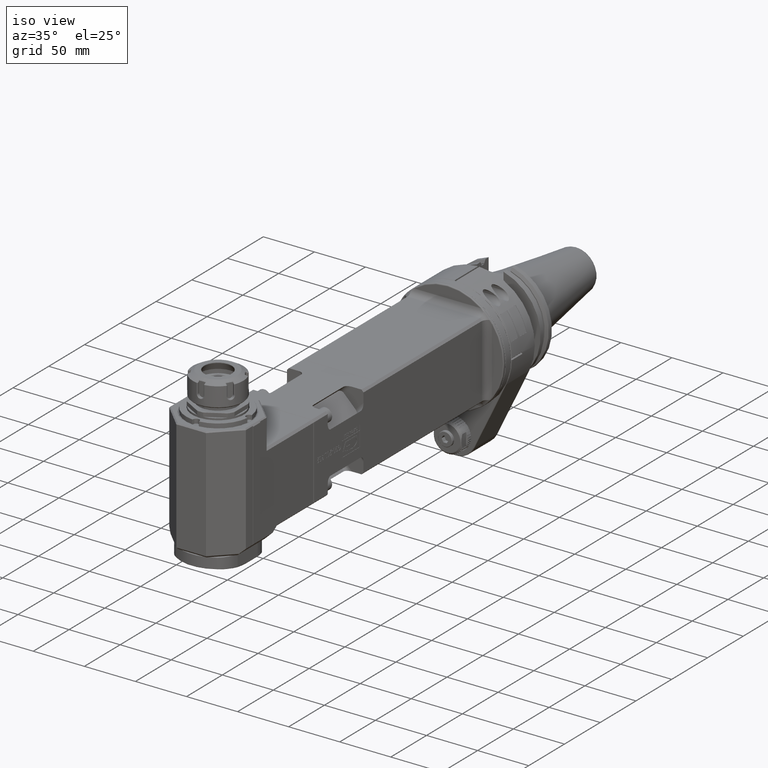
[diagram: clean part render]
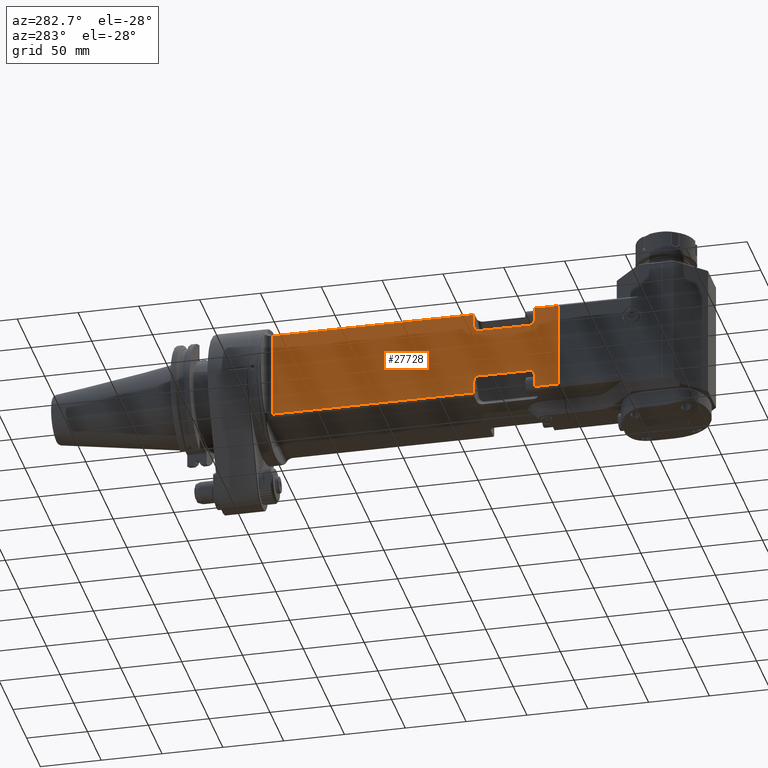
[diagram: tour spotlight — one face highlighted and labeled with its STEP entity id]
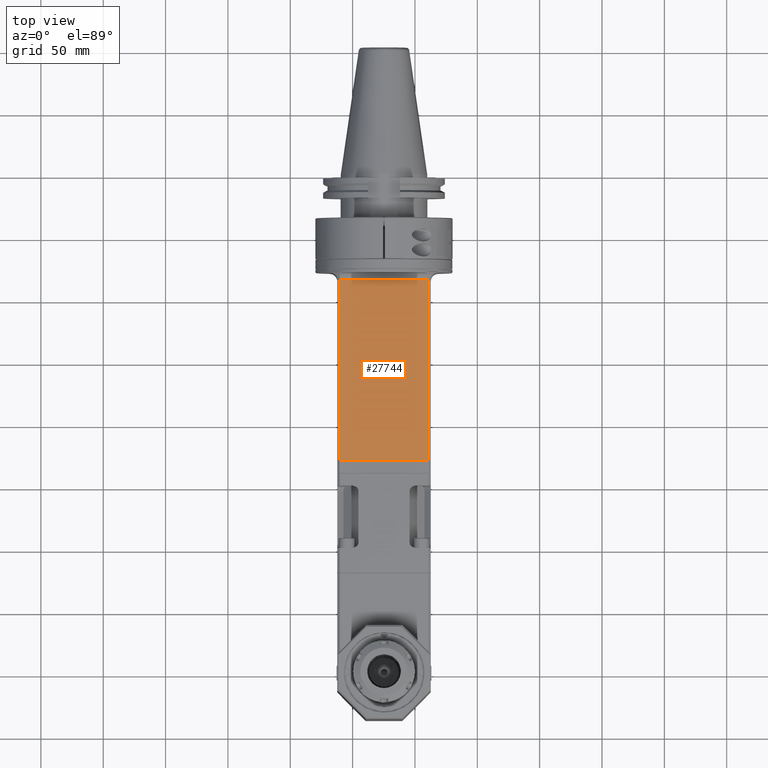
[diagram: tour spotlight — one face highlighted and labeled with its STEP entity id]
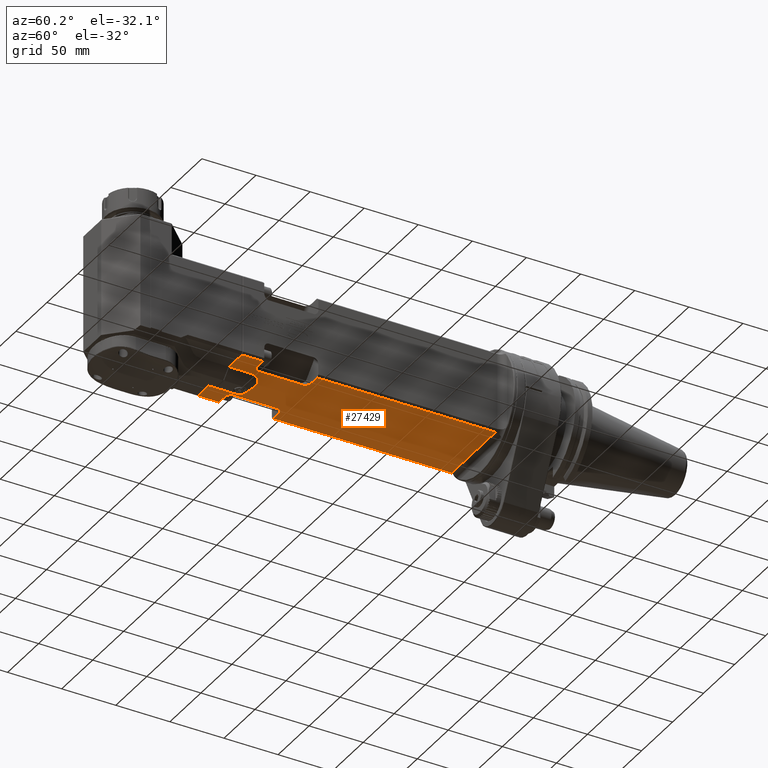
[diagram: tour spotlight — one face highlighted and labeled with its STEP entity id]
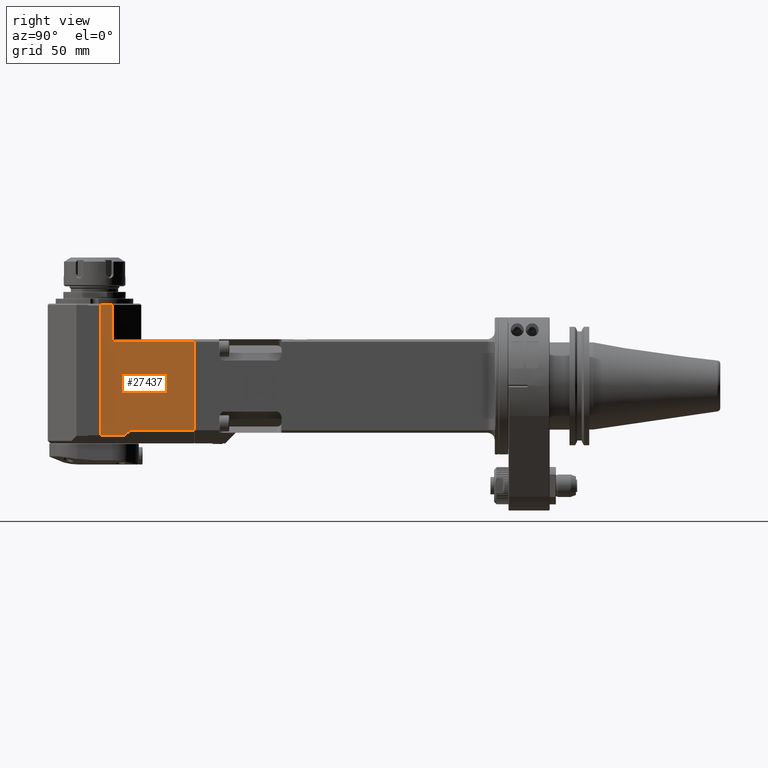
[diagram: tour spotlight — one face highlighted and labeled with its STEP entity id]
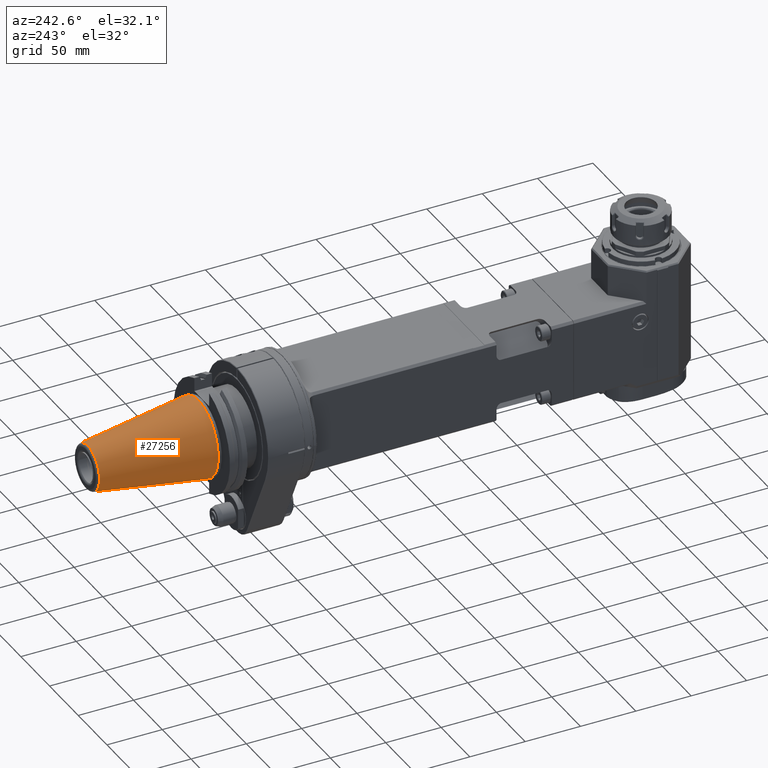
[diagram: tour spotlight — one face highlighted and labeled with its STEP entity id]
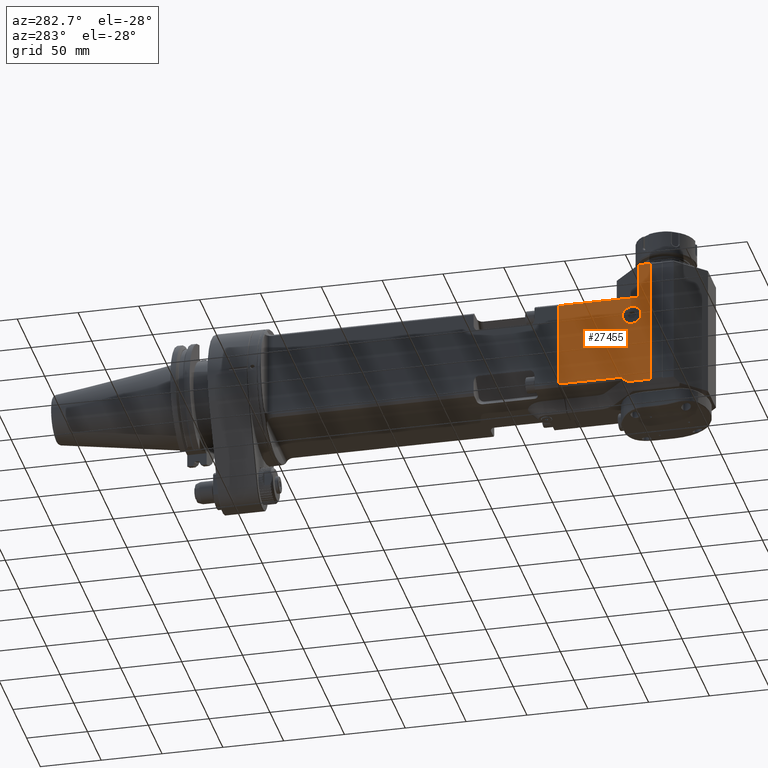
[diagram: tour spotlight — one face highlighted and labeled with its STEP entity id]
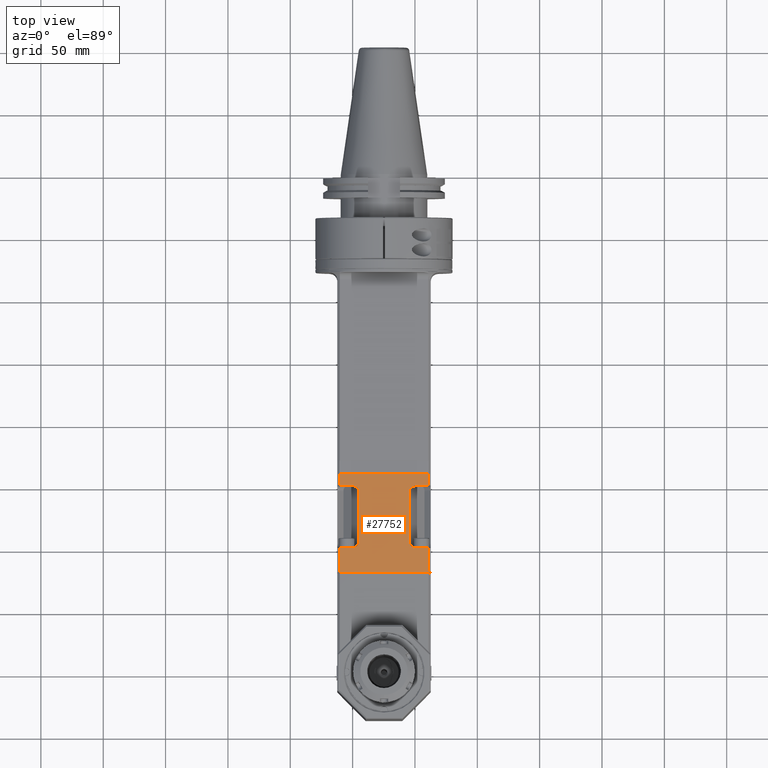
[diagram: tour spotlight — one face highlighted and labeled with its STEP entity id]
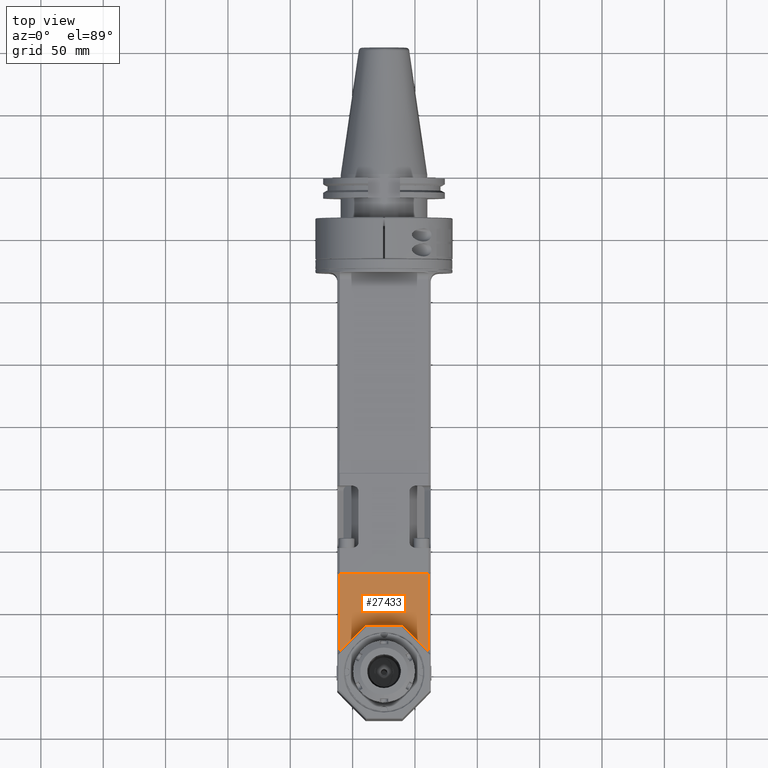
[diagram: tour spotlight — one face highlighted and labeled with its STEP entity id]
A machine part: a face-by-face anatomy tour. The part has 1622 B-rep faces; the first image is the clean iso view, then the 8 largest visible faces are spotlighted one at a time (largest first), each with its STEP entity span.

Face 1 — auxiliary view, entity #27728. In plain terms, the highlighted planar face has unit normal (-1, -0, 0).
Definition (entity closure, byte-faithful):
#634=ELLIPSE('',#30215,5.65685424949238,4.);
#635=ELLIPSE('',#30218,5.65685424949238,4.);
#636=ELLIPSE('',#30219,5.65685424949238,4.);
#637=ELLIPSE('',#30220,5.65685424949238,4.);
#3959=FACE_OUTER_BOUND('',#5690,.T.);
#5690=EDGE_LOOP('',(#22195,#22196,#22197,#22198,#22199,#22200,#22201,#22202,
#22203,#22204,#22205,#22206,#22207,#22208,#22209,#22210));
#7265=LINE('',#43592,#9462);
#7272=LINE('',#44431,#9469);
#7683=LINE('',#51904,#9880);
#7685=LINE('',#51908,#9882);
#7696=LINE('',#51940,#9893);
#7697=LINE('',#51943,#9894);
#7698=LINE('',#51945,#9895);
#7699=LINE('',#51947,#9896);
#7700=LINE('',#51951,#9897);
#7701=LINE('',#51955,#9898);
#7702=LINE('',#51956,#9899);
#7703=LINE('',#51958,#9900);
#9462=VECTOR('',#34245,71.);
#9469=VECTOR('',#34296,165.);
#9880=VECTOR('',#35689,19.5);
#9882=VECTOR('',#35693,9.313708498985);
#9893=VECTOR('',#35724,9.313708498985);
#9894=VECTOR('',#35727,71.);
#9895=VECTOR('',#35728,19.5);
#9896=VECTOR('',#35729,9.313708498985);
#9897=VECTOR('',#35732,42.);
#9898=VECTOR('',#35735,9.313708498985);
#9899=VECTOR('',#35736,165.);
#9900=VECTOR('',#35737,42.);
#11878=VERTEX_POINT('',#43589);
#11879=VERTEX_POINT('',#43591);
#11910=VERTEX_POINT('',#44429);
#12355=VERTEX_POINT('',#51899);
#12356=VERTEX_POINT('',#51903);
#12357=VERTEX_POINT('',#51907);
#12367=VERTEX_POINT('',#51933);
#12368=VERTEX_POINT('',#51935);
#12369=VERTEX_POINT('',#51942);
#12370=VERTEX_POINT('',#51944);
#12371=VERTEX_POINT('',#51946);
#12372=VERTEX_POINT('',#51948);
#12373=VERTEX_POINT('',#51950);
#12374=VERTEX_POINT('',#51952);
#12375=VERTEX_POINT('',#51954);
#12376=VERTEX_POINT('',#51957);
#15095=EDGE_CURVE('',#11879,#11878,#7265,.T.);
#15147=EDGE_CURVE('',#11910,#11878,#7272,.T.);
#15858=EDGE_CURVE('',#12355,#12356,#7683,.T.);
#15860=EDGE_CURVE('',#12356,#12357,#7685,.T.);
#15874=EDGE_CURVE('',#12368,#12367,#634,.T.);
#15877=EDGE_CURVE('',#11910,#12368,#7696,.T.);
#15878=EDGE_CURVE('',#12369,#12355,#7697,.T.);
#15879=EDGE_CURVE('',#12369,#12370,#7698,.T.);
#15880=EDGE_CURVE('',#12370,#12371,#7699,.T.);
#15881=EDGE_CURVE('',#12371,#12372,#635,.T.);
#15882=EDGE_CURVE('',#12373,#12372,#7700,.T.);
#15883=EDGE_CURVE('',#12373,#12374,#636,.T.);
#15884=EDGE_CURVE('',#12375,#12374,#7701,.T.);
#15885=EDGE_CURVE('',#12375,#11879,#7702,.T.);
#15886=EDGE_CURVE('',#12367,#12376,#7703,.T.);
#15887=EDGE_CURVE('',#12376,#12357,#637,.T.);
#22195=ORIENTED_EDGE('',*,*,#15878,.F.);
#22196=ORIENTED_EDGE('',*,*,#15879,.T.);
#22197=ORIENTED_EDGE('',*,*,#15880,.T.);
#22198=ORIENTED_EDGE('',*,*,#15881,.T.);
#22199=ORIENTED_EDGE('',*,*,#15882,.F.);
#22200=ORIENTED_EDGE('',*,*,#15883,.T.);
#22201=ORIENTED_EDGE('',*,*,#15884,.F.);
#22202=ORIENTED_EDGE('',*,*,#15885,.T.);
#22203=ORIENTED_EDGE('',*,*,#15095,.T.);
#22204=ORIENTED_EDGE('',*,*,#15147,.F.);
#22205=ORIENTED_EDGE('',*,*,#15877,.T.);
#22206=ORIENTED_EDGE('',*,*,#15874,.T.);
#22207=ORIENTED_EDGE('',*,*,#15886,.T.);
#22208=ORIENTED_EDGE('',*,*,#15887,.T.);
#22209=ORIENTED_EDGE('',*,*,#15860,.F.);
#22210=ORIENTED_EDGE('',*,*,#15858,.F.);
#26544=PLANE('',#30217);
#27728=ADVANCED_FACE('',(#3959),#26544,.T.);
#30215=AXIS2_PLACEMENT_3D('',#51936,#35718,#35719);
#30217=AXIS2_PLACEMENT_3D('',#51941,#35725,#35726);
#30218=AXIS2_PLACEMENT_3D('',#51949,#35730,#35731);
#30219=AXIS2_PLACEMENT_3D('',#51953,#35733,#35734);
#30220=AXIS2_PLACEMENT_3D('',#51959,#35738,#35739);
#34245=DIRECTION('',(0.,0.,-1.));
#34296=DIRECTION('',(0.,1.,0.));
#35689=DIRECTION('',(0.,1.,0.));
#35693=DIRECTION('',(0.,0.,1.));
#35718=DIRECTION('center_axis',(1.,0.,0.));
#35719=DIRECTION('ref_axis',(0.,0.,1.));
#35724=DIRECTION('',(0.,0.,1.));
#35725=DIRECTION('center_axis',(-1.,0.,0.));
#35726=DIRECTION('ref_axis',(0.,0.,-1.));
#35727=DIRECTION('',(0.,0.,-1.));
#35728=DIRECTION('',(0.,1.,0.));
#35729=DIRECTION('',(0.,0.,-1.));
#35730=DIRECTION('center_axis',(1.,0.,0.));
#35731=DIRECTION('ref_axis',(0.,0.,-1.));
#35732=DIRECTION('',(0.,-1.,0.));
#35733=DIRECTION('center_axis',(1.,0.,0.));
#35734=DIRECTION('ref_axis',(0.,0.,-1.));
#35735=DIRECTION('',(0.,0.,-1.));
#35736=DIRECTION('',(0.,1.,0.));
#35737=DIRECTION('',(0.,-1.,0.));
#35738=DIRECTION('center_axis',(1.,0.,0.));
#35739=DIRECTION('ref_axis',(0.,0.,1.));
#43589=CARTESIAN_POINT('',(-37.5,-17.,-35.5));
#43591=CARTESIAN_POINT('',(-37.5,-17.,35.5));
#43592=CARTESIAN_POINT('',(-37.5,-17.,35.5));
#44429=CARTESIAN_POINT('',(-37.5,-182.,-35.5));
#44431=CARTESIAN_POINT('',(-37.5,-182.,-35.5));
#51899=CARTESIAN_POINT('',(-37.5,-251.5,-35.5));
#51903=CARTESIAN_POINT('',(-37.5,-232.,-35.5));
#51904=CARTESIAN_POINT('',(-37.5,-251.5,-35.5));
#51907=CARTESIAN_POINT('',(-37.5,-232.,-26.18629150102));
#51908=CARTESIAN_POINT('',(-37.5,-232.,-35.5));
#51933=CARTESIAN_POINT('',(-37.5,-186.,-20.52943725152));
#51935=CARTESIAN_POINT('',(-37.5,-182.,-26.18629150102));
#51936=CARTESIAN_POINT('Origin',(-37.5,-186.,-26.186291501));
#51940=CARTESIAN_POINT('',(-37.5,-182.,-35.5));
#51941=CARTESIAN_POINT('Origin',(-37.5,-11.,37.5));
#51942=CARTESIAN_POINT('',(-37.5,-251.5,35.5));
#51943=CARTESIAN_POINT('',(-37.5,-251.5,35.5));
#51944=CARTESIAN_POINT('',(-37.5,-232.,35.5));
#51945=CARTESIAN_POINT('',(-37.5,-251.5,35.5));
#51946=CARTESIAN_POINT('',(-37.5,-232.,26.18629150102));
#51947=CARTESIAN_POINT('',(-37.5,-232.,35.5));
#51948=CARTESIAN_POINT('',(-37.5,-228.,20.52943725152));
#51949=CARTESIAN_POINT('Origin',(-37.5,-228.,26.186291501));
#51950=CARTESIAN_POINT('',(-37.5,-186.,20.52943725152));
#51951=CARTESIAN_POINT('',(-37.5,-186.,20.52943725152));
#51952=CARTESIAN_POINT('',(-37.5,-182.,26.18629150102));
#51953=CARTESIAN_POINT('Origin',(-37.5,-186.,26.186291501));
#51954=CARTESIAN_POINT('',(-37.5,-182.,35.5));
#51955=CARTESIAN_POINT('',(-37.5,-182.,35.5));
#51956=CARTESIAN_POINT('',(-37.5,-182.,35.5));
#51957=CARTESIAN_POINT('',(-37.5,-228.,-20.52943725152));
#51958=CARTESIAN_POINT('',(-37.5,-186.,-20.52943725152));
#51959=CARTESIAN_POINT('Origin',(-37.5,-228.,-26.186291501));

Face 2 — top view, entity #27744. In plain terms, the highlighted planar face has unit normal (0, 0, 1).
Definition (entity closure, byte-faithful):
#3975=FACE_OUTER_BOUND('',#5707,.T.);
#5707=EDGE_LOOP('',(#22292,#22293,#22294,#22295));
#7727=LINE('',#52022,#9924);
#7735=LINE('',#52038,#9932);
#7739=LINE('',#52049,#9936);
#7740=LINE('',#52051,#9937);
#9924=VECTOR('',#35799,144.8);
#9932=VECTOR('',#35815,71.);
#9936=VECTOR('',#35825,144.8);
#9937=VECTOR('',#35828,71.);
#12396=VERTEX_POINT('',#52019);
#12397=VERTEX_POINT('',#52021);
#12401=VERTEX_POINT('',#52036);
#12405=VERTEX_POINT('',#52047);
#15918=EDGE_CURVE('',#12396,#12397,#7727,.T.);
#15927=EDGE_CURVE('',#12396,#12401,#7735,.T.);
#15933=EDGE_CURVE('',#12401,#12405,#7739,.T.);
#15934=EDGE_CURVE('',#12405,#12397,#7740,.T.);
#22292=ORIENTED_EDGE('',*,*,#15927,.T.);
#22293=ORIENTED_EDGE('',*,*,#15933,.T.);
#22294=ORIENTED_EDGE('',*,*,#15934,.T.);
#22295=ORIENTED_EDGE('',*,*,#15918,.F.);
#26557=PLANE('',#30246);
#27744=ADVANCED_FACE('',(#3975),#26557,.T.);
#30246=AXIS2_PLACEMENT_3D('',#52050,#35826,#35827);
#35799=DIRECTION('',(0.,1.,0.));
#35815=DIRECTION('',(1.,0.,0.));
#35825=DIRECTION('',(0.,1.,0.));
#35826=DIRECTION('center_axis',(0.,0.,1.));
#35827=DIRECTION('ref_axis',(-1.,0.,0.));
#35828=DIRECTION('',(-1.,0.,0.));
#52019=CARTESIAN_POINT('',(-35.5,-161.8,37.5));
#52021=CARTESIAN_POINT('',(-35.5,-17.,37.5));
#52022=CARTESIAN_POINT('',(-35.5,-161.8,37.5));
#52036=CARTESIAN_POINT('',(35.5,-161.8,37.5));
#52038=CARTESIAN_POINT('',(-35.5,-161.8,37.5));
#52047=CARTESIAN_POINT('',(35.5,-17.,37.5));
#52049=CARTESIAN_POINT('',(35.5,-161.8,37.5));
#52050=CARTESIAN_POINT('Origin',(37.5,-11.,37.5));
#52051=CARTESIAN_POINT('',(35.5,-17.,37.5));

Face 3 — auxiliary view, entity #27429. In plain terms, the highlighted planar face has unit normal (-0, -0, -1).
Definition (entity closure, byte-faithful):
#629=ELLIPSE('',#29717,5.65685424949238,4.);
#630=ELLIPSE('',#29718,5.65685424949238,4.);
#631=ELLIPSE('',#29719,5.65685424949238,4.);
#632=ELLIPSE('',#29720,5.65685424949238,4.);
#2306=CIRCLE('',#29716,15.);
#3660=FACE_OUTER_BOUND('',#5356,.T.);
#5356=EDGE_LOOP('',(#20747,#20748,#20749,#20750,#20751,#20752,#20753,#20754,
#20755,#20756,#20757,#20758,#20759,#20760,#20761,#20762,#20763,#20764,#20765,
#20766));
#7269=LINE('',#44424,#9466);
#7270=LINE('',#44428,#9467);
#7273=LINE('',#44435,#9470);
#7274=LINE('',#44437,#9471);
#7275=LINE('',#44441,#9472);
#7276=LINE('',#44443,#9473);
#7277=LINE('',#44445,#9474);
#7278=LINE('',#44447,#9475);
#7279=LINE('',#44451,#9476);
#7280=LINE('',#44454,#9477);
#7281=LINE('',#44456,#9478);
#7282=LINE('',#44458,#9479);
#7283=LINE('',#44462,#9480);
#7284=LINE('',#44466,#9481);
#7285=LINE('',#44467,#9482);
#9466=VECTOR('',#34289,71.);
#9467=VECTOR('',#34294,165.);
#9470=VECTOR('',#34299,20.5);
#9471=VECTOR('',#34300,18.00000104421);
#9472=VECTOR('',#34303,18.00000000739);
#9473=VECTOR('',#34304,20.5);
#9474=VECTOR('',#34305,19.5);
#9475=VECTOR('',#34306,9.313708498985);
#9476=VECTOR('',#34309,42.);
#9477=VECTOR('',#34312,9.313708498985);
#9478=VECTOR('',#34313,165.);
#9479=VECTOR('',#34314,9.313708498985);
#9480=VECTOR('',#34317,42.);
#9481=VECTOR('',#34320,9.313708498985);
#9482=VECTOR('',#34321,19.5);
#11907=VERTEX_POINT('',#44421);
#11908=VERTEX_POINT('',#44423);
#11909=VERTEX_POINT('',#44427);
#11911=VERTEX_POINT('',#44433);
#11912=VERTEX_POINT('',#44434);
#11913=VERTEX_POINT('',#44436);
#11914=VERTEX_POINT('',#44438);
#11915=VERTEX_POINT('',#44440);
#11916=VERTEX_POINT('',#44442);
#11917=VERTEX_POINT('',#44444);
#11918=VERTEX_POINT('',#44446);
#11919=VERTEX_POINT('',#44448);
#11920=VERTEX_POINT('',#44450);
#11921=VERTEX_POINT('',#44452);
#11922=VERTEX_POINT('',#44455);
#11923=VERTEX_POINT('',#44457);
#11924=VERTEX_POINT('',#44459);
#11925=VERTEX_POINT('',#44461);
#11926=VERTEX_POINT('',#44463);
#11927=VERTEX_POINT('',#44465);
#15143=EDGE_CURVE('',#11908,#11907,#7269,.T.);
#15145=EDGE_CURVE('',#11909,#11908,#7270,.T.);
#15148=EDGE_CURVE('',#11911,#11912,#7273,.T.);
#15149=EDGE_CURVE('',#11913,#11911,#7274,.T.);
#15150=EDGE_CURVE('',#11914,#11913,#2306,.T.);
#15151=EDGE_CURVE('',#11915,#11914,#7275,.T.);
#15152=EDGE_CURVE('',#11916,#11915,#7276,.T.);
#15153=EDGE_CURVE('',#11916,#11917,#7277,.T.);
#15154=EDGE_CURVE('',#11917,#11918,#7278,.T.);
#15155=EDGE_CURVE('',#11918,#11919,#629,.T.);
#15156=EDGE_CURVE('',#11920,#11919,#7279,.T.);
#15157=EDGE_CURVE('',#11920,#11921,#630,.T.);
#15158=EDGE_CURVE('',#11909,#11921,#7280,.T.);
#15159=EDGE_CURVE('',#11922,#11907,#7281,.T.);
#15160=EDGE_CURVE('',#11922,#11923,#7282,.T.);
#15161=EDGE_CURVE('',#11923,#11924,#631,.T.);
#15162=EDGE_CURVE('',#11924,#11925,#7283,.T.);
#15163=EDGE_CURVE('',#11925,#11926,#632,.T.);
#15164=EDGE_CURVE('',#11927,#11926,#7284,.T.);
#15165=EDGE_CURVE('',#11912,#11927,#7285,.T.);
#20747=ORIENTED_EDGE('',*,*,#15148,.F.);
#20748=ORIENTED_EDGE('',*,*,#15149,.F.);
#20749=ORIENTED_EDGE('',*,*,#15150,.F.);
#20750=ORIENTED_EDGE('',*,*,#15151,.F.);
#20751=ORIENTED_EDGE('',*,*,#15152,.F.);
#20752=ORIENTED_EDGE('',*,*,#15153,.T.);
#20753=ORIENTED_EDGE('',*,*,#15154,.T.);
#20754=ORIENTED_EDGE('',*,*,#15155,.T.);
#20755=ORIENTED_EDGE('',*,*,#15156,.F.);
#20756=ORIENTED_EDGE('',*,*,#15157,.T.);
#20757=ORIENTED_EDGE('',*,*,#15158,.F.);
#20758=ORIENTED_EDGE('',*,*,#15145,.T.);
#20759=ORIENTED_EDGE('',*,*,#15143,.T.);
#20760=ORIENTED_EDGE('',*,*,#15159,.F.);
#20761=ORIENTED_EDGE('',*,*,#15160,.T.);
#20762=ORIENTED_EDGE('',*,*,#15161,.T.);
#20763=ORIENTED_EDGE('',*,*,#15162,.T.);
#20764=ORIENTED_EDGE('',*,*,#15163,.T.);
#20765=ORIENTED_EDGE('',*,*,#15164,.F.);
#20766=ORIENTED_EDGE('',*,*,#15165,.F.);
#26407=PLANE('',#29715);
#27429=ADVANCED_FACE('',(#3660),#26407,.T.);
#29715=AXIS2_PLACEMENT_3D('',#44432,#34297,#34298);
#29716=AXIS2_PLACEMENT_3D('',#44439,#34301,#34302);
#29717=AXIS2_PLACEMENT_3D('',#44449,#34307,#34308);
#29718=AXIS2_PLACEMENT_3D('',#44453,#34310,#34311);
#29719=AXIS2_PLACEMENT_3D('',#44460,#34315,#34316);
#29720=AXIS2_PLACEMENT_3D('',#44464,#34318,#34319);
#34289=DIRECTION('',(1.,0.,0.));
#34294=DIRECTION('',(0.,1.,0.));
#34297=DIRECTION('center_axis',(0.,0.,-1.));
#34298=DIRECTION('ref_axis',(1.,0.,0.));
#34299=DIRECTION('',(1.,0.,0.));
#34300=DIRECTION('',(5.705970673317E-9,-1.,5.705964554755E-9));
#34301=DIRECTION('center_axis',(0.,0.,-1.));
#34302=DIRECTION('ref_axis',(-1.,0.,0.));
#34303=DIRECTION('',(3.870203908847E-10,1.,-3.870196013928E-10));
#34304=DIRECTION('',(1.,0.,0.));
#34305=DIRECTION('',(0.,1.,0.));
#34306=DIRECTION('',(1.,0.,0.));
#34307=DIRECTION('center_axis',(0.,0.,1.));
#34308=DIRECTION('ref_axis',(1.,0.,0.));
#34309=DIRECTION('',(0.,-1.,0.));
#34310=DIRECTION('center_axis',(0.,0.,1.));
#34311=DIRECTION('ref_axis',(1.,0.,0.));
#34312=DIRECTION('',(1.,0.,0.));
#34313=DIRECTION('',(0.,1.,0.));
#34314=DIRECTION('',(-1.,0.,0.));
#34315=DIRECTION('center_axis',(0.,0.,1.));
#34316=DIRECTION('ref_axis',(-1.,0.,0.));
#34317=DIRECTION('',(0.,-1.,0.));
#34318=DIRECTION('center_axis',(0.,0.,1.));
#34319=DIRECTION('ref_axis',(-1.,0.,0.));
#34320=DIRECTION('',(-1.,0.,0.));
#34321=DIRECTION('',(0.,1.,0.));
#44421=CARTESIAN_POINT('',(35.5,-17.,-37.5));
#44423=CARTESIAN_POINT('',(-35.5,-17.,-37.5));
#44424=CARTESIAN_POINT('',(-35.5,-17.,-37.5));
#44427=CARTESIAN_POINT('',(-35.5,-182.,-37.5));
#44428=CARTESIAN_POINT('',(-35.5,-182.,-37.5));
#44432=CARTESIAN_POINT('Origin',(-37.5,-11.,-37.5));
#44433=CARTESIAN_POINT('',(15.,-251.5,-37.5));
#44434=CARTESIAN_POINT('',(35.5,-251.5,-37.5));
#44435=CARTESIAN_POINT('',(15.,-251.5,-37.5));
#44436=CARTESIAN_POINT('',(14.9999999486528,-233.499998996543,-37.5000000513472));
#44437=CARTESIAN_POINT('',(14.99999989729,-233.4999989558,-37.50000010271));
#44438=CARTESIAN_POINT('',(-14.9999999963445,-233.4999999926,-37.5000000036555));
#44439=CARTESIAN_POINT('Origin',(-4.529708940471E-14,-233.5,-37.5));
#44440=CARTESIAN_POINT('',(-15.,-251.5,-37.5));
#44441=CARTESIAN_POINT('',(-15.,-251.5,-37.5));
#44442=CARTESIAN_POINT('',(-35.5,-251.5,-37.5));
#44443=CARTESIAN_POINT('',(-35.5,-251.5,-37.5));
#44444=CARTESIAN_POINT('',(-35.5,-232.,-37.5));
#44445=CARTESIAN_POINT('',(-35.5,-251.5,-37.5));
#44446=CARTESIAN_POINT('',(-26.18629150102,-232.,-37.5));
#44447=CARTESIAN_POINT('',(-35.5,-232.,-37.5));
#44448=CARTESIAN_POINT('',(-20.52943725152,-228.,-37.5));
#44449=CARTESIAN_POINT('Origin',(-26.186291501,-228.,-37.5));
#44450=CARTESIAN_POINT('',(-20.52943725152,-186.,-37.5));
#44451=CARTESIAN_POINT('',(-20.52943725152,-186.,-37.5));
#44452=CARTESIAN_POINT('',(-26.18629150102,-182.,-37.5));
#44453=CARTESIAN_POINT('Origin',(-26.186291501,-186.,-37.5));
#44454=CARTESIAN_POINT('',(-35.5,-182.,-37.5));
#44455=CARTESIAN_POINT('',(35.5,-182.,-37.5));
#44456=CARTESIAN_POINT('',(35.5,-182.,-37.5));
#44457=CARTESIAN_POINT('',(26.18629150102,-182.,-37.5));
#44458=CARTESIAN_POINT('',(35.5,-182.,-37.5));
#44459=CARTESIAN_POINT('',(20.52943725152,-186.,-37.5));
#44460=CARTESIAN_POINT('Origin',(26.186291501,-186.,-37.5));
#44461=CARTESIAN_POINT('',(20.52943725152,-228.,-37.5));
#44462=CARTESIAN_POINT('',(20.52943725152,-186.,-37.5));
#44463=CARTESIAN_POINT('',(26.18629150102,-232.,-37.5));
#44464=CARTESIAN_POINT('Origin',(26.186291501,-228.,-37.5));
#44465=CARTESIAN_POINT('',(35.5,-232.,-37.5));
#44466=CARTESIAN_POINT('',(35.5,-232.,-37.5));
#44467=CARTESIAN_POINT('',(35.5,-251.5,-37.5));

Face 4 — right view, entity #27437. In plain terms, the highlighted planar face has unit normal (1, 0, -0).
Definition (entity closure, byte-faithful):
#3668=FACE_OUTER_BOUND('',#5365,.T.);
#5365=EDGE_LOOP('',(#20817,#20818,#20819,#20820,#20821,#20822,#20823,#20824));
#7322=LINE('',#44541,#9519);
#7324=LINE('',#44546,#9521);
#7326=LINE('',#44551,#9523);
#7327=LINE('',#44553,#9524);
#7328=LINE('',#44555,#9525);
#7329=LINE('',#44557,#9526);
#7330=LINE('',#44558,#9527);
#7331=LINE('',#44559,#9528);
#9519=VECTOR('',#34368,65.3);
#9521=VECTOR('',#34374,71.);
#9523=VECTOR('',#34378,9.5);
#9524=VECTOR('',#34379,105.);
#9525=VECTOR('',#34380,17.98528137424);
#9526=VECTOR('',#34381,7.79422863405972);
#9527=VECTOR('',#34382,50.45075759508);
#9528=VECTOR('',#34383,29.5);
#11958=VERTEX_POINT('',#44537);
#11959=VERTEX_POINT('',#44539);
#11960=VERTEX_POINT('',#44545);
#11961=VERTEX_POINT('',#44549);
#11962=VERTEX_POINT('',#44550);
#11963=VERTEX_POINT('',#44552);
#11964=VERTEX_POINT('',#44554);
#11965=VERTEX_POINT('',#44556);
#15202=EDGE_CURVE('',#11959,#11958,#7322,.T.);
#15204=EDGE_CURVE('',#11958,#11960,#7324,.T.);
#15206=EDGE_CURVE('',#11961,#11962,#7326,.T.);
#15207=EDGE_CURVE('',#11963,#11961,#7327,.T.);
#15208=EDGE_CURVE('',#11964,#11963,#7328,.T.);
#15209=EDGE_CURVE('',#11964,#11965,#7329,.T.);
#15210=EDGE_CURVE('',#11960,#11965,#7330,.T.);
#15211=EDGE_CURVE('',#11959,#11962,#7331,.T.);
#20817=ORIENTED_EDGE('',*,*,#15206,.F.);
#20818=ORIENTED_EDGE('',*,*,#15207,.F.);
#20819=ORIENTED_EDGE('',*,*,#15208,.F.);
#20820=ORIENTED_EDGE('',*,*,#15209,.T.);
#20821=ORIENTED_EDGE('',*,*,#15210,.F.);
#20822=ORIENTED_EDGE('',*,*,#15204,.F.);
#20823=ORIENTED_EDGE('',*,*,#15202,.F.);
#20824=ORIENTED_EDGE('',*,*,#15211,.T.);
#26415=PLANE('',#29728);
#27437=ADVANCED_FACE('',(#3668),#26415,.T.);
#29728=AXIS2_PLACEMENT_3D('',#44548,#34376,#34377);
#34368=DIRECTION('',(0.,1.,0.));
#34374=DIRECTION('',(0.,0.,-1.));
#34376=DIRECTION('center_axis',(1.,0.,0.));
#34377=DIRECTION('ref_axis',(0.,1.,0.));
#34378=DIRECTION('',(0.,1.,0.));
#34379=DIRECTION('',(0.,0.,1.));
#34380=DIRECTION('',(0.,-1.,0.));
#34381=DIRECTION('',(0.,0.816496580927729,0.577350269189621));
#34382=DIRECTION('',(0.,-1.,0.));
#34383=DIRECTION('',(0.,0.,1.));
#44537=CARTESIAN_POINT('',(37.5,-252.2,35.5));
#44539=CARTESIAN_POINT('',(37.5,-317.5,35.5));
#44541=CARTESIAN_POINT('',(37.5,-317.5,35.5));
#44545=CARTESIAN_POINT('',(37.5,-252.2,-35.5));
#44546=CARTESIAN_POINT('',(37.5,-252.2,35.5));
#44548=CARTESIAN_POINT('Origin',(37.5,-369.5,-46.));
#44549=CARTESIAN_POINT('',(37.5,-327.,65.));
#44550=CARTESIAN_POINT('',(37.5,-317.5,65.));
#44551=CARTESIAN_POINT('',(37.5,-327.,65.));
#44552=CARTESIAN_POINT('',(37.5,-327.,-40.));
#44553=CARTESIAN_POINT('',(37.5,-327.,-40.));
#44554=CARTESIAN_POINT('',(37.5,-309.0147186258,-40.));
#44555=CARTESIAN_POINT('',(37.5,-309.0147186258,-40.));
#44556=CARTESIAN_POINT('',(37.5,-302.6507575951,-35.5));
#44557=CARTESIAN_POINT('',(37.5,-309.0147186258,-40.));
#44558=CARTESIAN_POINT('',(37.5,-252.2,-35.5));
#44559=CARTESIAN_POINT('',(37.5,-317.5,35.5));

Face 5 — auxiliary view, entity #27256. In plain terms, the highlighted conical surface has half-angle 8.3 deg.
Definition (entity closure, byte-faithful):
#1560=CONICAL_SURFACE('',#29318,27.65552420652,0.144862327915529);
#2076=CIRCLE('',#29315,20.38604841304);
#2078=CIRCLE('',#29317,20.38604841304);
#2079=CIRCLE('',#29319,34.925);
#3487=FACE_OUTER_BOUND('',#5141,.T.);
#5141=EDGE_LOOP('',(#19946,#19947,#19948,#19949,#19950));
#7153=LINE('',#41885,#9350);
#9350=VECTOR('',#33387,27.65552420652);
#11611=VERTEX_POINT('',#41877);
#11612=VERTEX_POINT('',#41878);
#11613=VERTEX_POINT('',#41883);
#14705=EDGE_CURVE('',#11611,#11612,#2076,.T.);
#14707=EDGE_CURVE('',#11612,#11611,#2078,.T.);
#14708=EDGE_CURVE('',#11613,#11613,#2079,.T.);
#14709=EDGE_CURVE('',#11613,#11612,#7153,.T.);
#19946=ORIENTED_EDGE('',*,*,#14708,.F.);
#19947=ORIENTED_EDGE('',*,*,#14709,.T.);
#19948=ORIENTED_EDGE('',*,*,#14707,.T.);
#19949=ORIENTED_EDGE('',*,*,#14705,.T.);
#19950=ORIENTED_EDGE('',*,*,#14709,.F.);
#27256=ADVANCED_FACE('',(#3487),#1560,.T.);
#29315=AXIS2_PLACEMENT_3D('',#41879,#33377,#33378);
#29317=AXIS2_PLACEMENT_3D('',#41881,#33381,#33382);
#29318=AXIS2_PLACEMENT_3D('',#41882,#33383,#33384);
#29319=AXIS2_PLACEMENT_3D('',#41884,#33385,#33386);
#33377=DIRECTION('center_axis',(0.,-1.,0.));
#33378=DIRECTION('ref_axis',(0.00108059556212205,0.,0.999999416156445));
#33381=DIRECTION('center_axis',(0.,-1.,0.));
#33382=DIRECTION('ref_axis',(0.00108059556212205,0.,0.999999416156445));
#33383=DIRECTION('center_axis',(0.,-1.,0.));
#33384=DIRECTION('ref_axis',(0.,0.,1.));
#33385=DIRECTION('center_axis',(0.,-1.,0.));
#33386=DIRECTION('ref_axis',(0.,0.,-1.));
#33387=DIRECTION('',(-1.76785359492914E-17,0.989525789068969,0.144356201000973));
#41877=CARTESIAN_POINT('',(0.0220290734443338,167.6608905025,20.386036510777));
#41878=CARTESIAN_POINT('',(2.49657089362968E-15,167.660890502501,-20.3860484130436));
#41879=CARTESIAN_POINT('Origin',(0.,167.6608905025,-1.480248809205E-14));
#41881=CARTESIAN_POINT('Origin',(0.,167.6608905025,-1.480248809205E-14));
#41882=CARTESIAN_POINT('Origin',(0.,117.83044525125,-1.480248809205E-14));
#41883=CARTESIAN_POINT('',(0.,68.,-34.925));
#41884=CARTESIAN_POINT('Origin',(0.,68.,-1.480248809205E-14));
#41885=CARTESIAN_POINT('',(3.38682491982569E-15,117.83044525125,-27.65552420652));

Face 6 — auxiliary view, entity #27455. In plain terms, the highlighted planar face has unit normal (-1, -0, 0).
Definition (entity closure, byte-faithful):
#503=FACE_BOUND('',#5384,.T.);
#2308=CIRCLE('',#29748,7.7);
#3686=FACE_OUTER_BOUND('',#5383,.T.);
#5383=EDGE_LOOP('',(#20905,#20906,#20907,#20908,#20909,#20910,#20911,#20912));
#5384=EDGE_LOOP('',(#20913));
#7374=LINE('',#44648,#9571);
#7376=LINE('',#44653,#9573);
#7377=LINE('',#44655,#9574);
#7378=LINE('',#44656,#9575);
#7379=LINE('',#44658,#9576);
#7380=LINE('',#44660,#9577);
#7381=LINE('',#44662,#9578);
#7382=LINE('',#44663,#9579);
#9571=VECTOR('',#34462,71.);
#9573=VECTOR('',#34466,9.5);
#9574=VECTOR('',#34467,29.5);
#9575=VECTOR('',#34468,65.3);
#9576=VECTOR('',#34469,50.45075759508);
#9577=VECTOR('',#34470,7.79422863405972);
#9578=VECTOR('',#34471,17.98528137424);
#9579=VECTOR('',#34472,105.);
#11992=VERTEX_POINT('',#44643);
#11993=VERTEX_POINT('',#44647);
#11994=VERTEX_POINT('',#44651);
#11995=VERTEX_POINT('',#44652);
#11996=VERTEX_POINT('',#44654);
#11997=VERTEX_POINT('',#44657);
#11998=VERTEX_POINT('',#44659);
#11999=VERTEX_POINT('',#44661);
#12000=VERTEX_POINT('',#44664);
#15255=EDGE_CURVE('',#11992,#11993,#7374,.T.);
#15257=EDGE_CURVE('',#11994,#11995,#7376,.T.);
#15258=EDGE_CURVE('',#11994,#11996,#7377,.T.);
#15259=EDGE_CURVE('',#11993,#11996,#7378,.T.);
#15260=EDGE_CURVE('',#11997,#11992,#7379,.T.);
#15261=EDGE_CURVE('',#11997,#11998,#7380,.T.);
#15262=EDGE_CURVE('',#11999,#11998,#7381,.T.);
#15263=EDGE_CURVE('',#11999,#11995,#7382,.T.);
#15264=EDGE_CURVE('',#12000,#12000,#2308,.T.);
#20905=ORIENTED_EDGE('',*,*,#15257,.F.);
#20906=ORIENTED_EDGE('',*,*,#15258,.T.);
#20907=ORIENTED_EDGE('',*,*,#15259,.F.);
#20908=ORIENTED_EDGE('',*,*,#15255,.F.);
#20909=ORIENTED_EDGE('',*,*,#15260,.F.);
#20910=ORIENTED_EDGE('',*,*,#15261,.T.);
#20911=ORIENTED_EDGE('',*,*,#15262,.F.);
#20912=ORIENTED_EDGE('',*,*,#15263,.T.);
#20913=ORIENTED_EDGE('',*,*,#15264,.T.);
#26433=PLANE('',#29747);
#27455=ADVANCED_FACE('',(#3686,#503),#26433,.T.);
#29747=AXIS2_PLACEMENT_3D('',#44650,#34464,#34465);
#29748=AXIS2_PLACEMENT_3D('',#44665,#34473,#34474);
#34462=DIRECTION('',(0.,0.,1.));
#34464=DIRECTION('center_axis',(-1.,0.,0.));
#34465=DIRECTION('ref_axis',(0.,-1.,0.));
#34466=DIRECTION('',(0.,-1.,0.));
#34467=DIRECTION('',(0.,0.,-1.));
#34468=DIRECTION('',(0.,-1.,0.));
#34469=DIRECTION('',(0.,1.,0.));
#34470=DIRECTION('',(0.,-0.816496580927729,-0.577350269189621));
#34471=DIRECTION('',(0.,1.,0.));
#34472=DIRECTION('',(0.,0.,1.));
#34473=DIRECTION('center_axis',(1.,0.,0.));
#34474=DIRECTION('ref_axis',(0.,-1.,0.));
#44643=CARTESIAN_POINT('',(-37.5,-252.2,-35.5));
#44647=CARTESIAN_POINT('',(-37.5,-252.2,35.5));
#44648=CARTESIAN_POINT('',(-37.5,-252.2,-35.5));
#44650=CARTESIAN_POINT('Origin',(-37.5,-294.5,-46.));
#44651=CARTESIAN_POINT('',(-37.5,-317.5,65.));
#44652=CARTESIAN_POINT('',(-37.5,-327.,65.));
#44653=CARTESIAN_POINT('',(-37.5,-317.5,65.));
#44654=CARTESIAN_POINT('',(-37.5,-317.5,35.5));
#44655=CARTESIAN_POINT('',(-37.5,-317.5,65.));
#44656=CARTESIAN_POINT('',(-37.5,-252.2,35.5));
#44657=CARTESIAN_POINT('',(-37.5,-302.6507575951,-35.5));
#44658=CARTESIAN_POINT('',(-37.5,-302.6507575951,-35.5));
#44659=CARTESIAN_POINT('',(-37.5,-309.0147186258,-40.));
#44660=CARTESIAN_POINT('',(-37.5,-302.6507575951,-35.5));
#44661=CARTESIAN_POINT('',(-37.5,-327.,-40.));
#44662=CARTESIAN_POINT('',(-37.5,-327.,-40.));
#44663=CARTESIAN_POINT('',(-37.5,-327.,-40.));
#44664=CARTESIAN_POINT('',(-37.5000000000015,-312.,27.6999999999985));
#44665=CARTESIAN_POINT('Origin',(-37.5,-312.,20.));

Face 7 — top view, entity #27752. In plain terms, the highlighted planar face has unit normal (0, 0, 1).
Definition (entity closure, byte-faithful):
#638=ELLIPSE('',#30233,5.65685424949238,4.);
#639=ELLIPSE('',#30236,5.65685424949238,4.);
#720=ELLIPSE('',#30331,5.65685424949238,4.);
#721=ELLIPSE('',#30332,5.65685424949238,4.);
#3983=FACE_OUTER_BOUND('',#5728,.T.);
#5728=EDGE_LOOP('',(#22523,#22524,#22525,#22526,#22527,#22528,#22529,#22530,
#22531,#22532,#22533,#22534,#22535,#22536,#22537,#22538));
#7707=LINE('',#51968,#9904);
#7709=LINE('',#51972,#9906);
#7718=LINE('',#52002,#9915);
#7723=LINE('',#52012,#9920);
#7728=LINE('',#52024,#9925);
#7729=LINE('',#52027,#9926);
#7736=LINE('',#52041,#9933);
#7802=LINE('',#52691,#9999);
#7803=LINE('',#52694,#10000);
#7804=LINE('',#52696,#10001);
#7805=LINE('',#52700,#10002);
#7806=LINE('',#52703,#10003);
#9904=VECTOR('',#35749,19.5);
#9906=VECTOR('',#35753,9.313708498985);
#9915=VECTOR('',#35782,42.);
#9920=VECTOR('',#35793,9.313708498985);
#9925=VECTOR('',#35802,9.8);
#9926=VECTOR('',#35805,71.);
#9933=VECTOR('',#35818,9.8);
#9999=VECTOR('',#36056,71.);
#10000=VECTOR('',#36059,19.5);
#10001=VECTOR('',#36060,9.313708498985);
#10002=VECTOR('',#36063,42.);
#10003=VECTOR('',#36066,9.313708498985);
#12377=VERTEX_POINT('',#51963);
#12378=VERTEX_POINT('',#51967);
#12379=VERTEX_POINT('',#51971);
#12389=VERTEX_POINT('',#51997);
#12390=VERTEX_POINT('',#52001);
#12391=VERTEX_POINT('',#52005);
#12392=VERTEX_POINT('',#52009);
#12393=VERTEX_POINT('',#52014);
#12398=VERTEX_POINT('',#52026);
#12402=VERTEX_POINT('',#52040);
#12602=VERTEX_POINT('',#52687);
#12603=VERTEX_POINT('',#52693);
#12604=VERTEX_POINT('',#52695);
#12605=VERTEX_POINT('',#52697);
#12606=VERTEX_POINT('',#52699);
#12607=VERTEX_POINT('',#52701);
#15891=EDGE_CURVE('',#12377,#12378,#7707,.T.);
#15893=EDGE_CURVE('',#12378,#12379,#7709,.T.);
#15906=EDGE_CURVE('',#12389,#12379,#638,.T.);
#15908=EDGE_CURVE('',#12390,#12389,#7718,.T.);
#15910=EDGE_CURVE('',#12391,#12390,#639,.T.);
#15914=EDGE_CURVE('',#12392,#12391,#7723,.T.);
#15920=EDGE_CURVE('',#12392,#12393,#7728,.T.);
#15921=EDGE_CURVE('',#12398,#12393,#7729,.T.);
#15928=EDGE_CURVE('',#12402,#12398,#7736,.T.);
#16138=EDGE_CURVE('',#12602,#12377,#7802,.T.);
#16139=EDGE_CURVE('',#12602,#12603,#7803,.T.);
#16140=EDGE_CURVE('',#12603,#12604,#7804,.T.);
#16141=EDGE_CURVE('',#12604,#12605,#720,.T.);
#16142=EDGE_CURVE('',#12606,#12605,#7805,.T.);
#16143=EDGE_CURVE('',#12606,#12607,#721,.T.);
#16144=EDGE_CURVE('',#12402,#12607,#7806,.T.);
#22523=ORIENTED_EDGE('',*,*,#16138,.F.);
#22524=ORIENTED_EDGE('',*,*,#16139,.T.);
#22525=ORIENTED_EDGE('',*,*,#16140,.T.);
#22526=ORIENTED_EDGE('',*,*,#16141,.T.);
#22527=ORIENTED_EDGE('',*,*,#16142,.F.);
#22528=ORIENTED_EDGE('',*,*,#16143,.T.);
#22529=ORIENTED_EDGE('',*,*,#16144,.F.);
#22530=ORIENTED_EDGE('',*,*,#15928,.T.);
#22531=ORIENTED_EDGE('',*,*,#15921,.T.);
#22532=ORIENTED_EDGE('',*,*,#15920,.F.);
#22533=ORIENTED_EDGE('',*,*,#15914,.T.);
#22534=ORIENTED_EDGE('',*,*,#15910,.T.);
#22535=ORIENTED_EDGE('',*,*,#15908,.T.);
#22536=ORIENTED_EDGE('',*,*,#15906,.T.);
#22537=ORIENTED_EDGE('',*,*,#15893,.F.);
#22538=ORIENTED_EDGE('',*,*,#15891,.F.);
#26563=PLANE('',#30330);
#27752=ADVANCED_FACE('',(#3983),#26563,.T.);
#30233=AXIS2_PLACEMENT_3D('',#51998,#35777,#35778);
#30236=AXIS2_PLACEMENT_3D('',#52006,#35786,#35787);
#30330=AXIS2_PLACEMENT_3D('',#52692,#36057,#36058);
#30331=AXIS2_PLACEMENT_3D('',#52698,#36061,#36062);
#30332=AXIS2_PLACEMENT_3D('',#52702,#36064,#36065);
#35749=DIRECTION('',(0.,1.,0.));
#35753=DIRECTION('',(1.,0.,0.));
#35777=DIRECTION('center_axis',(0.,0.,-1.));
#35778=DIRECTION('ref_axis',(1.,0.,0.));
#35782=DIRECTION('',(0.,-1.,0.));
#35786=DIRECTION('center_axis',(0.,0.,-1.));
#35787=DIRECTION('ref_axis',(1.,0.,0.));
#35793=DIRECTION('',(1.,0.,0.));
#35802=DIRECTION('',(0.,1.,0.));
#35805=DIRECTION('',(-1.,0.,0.));
#35818=DIRECTION('',(0.,1.,0.));
#36056=DIRECTION('',(-1.,0.,0.));
#36057=DIRECTION('center_axis',(0.,0.,1.));
#36058=DIRECTION('ref_axis',(-1.,0.,0.));
#36059=DIRECTION('',(0.,1.,0.));
#36060=DIRECTION('',(-1.,0.,0.));
#36061=DIRECTION('center_axis',(0.,0.,-1.));
#36062=DIRECTION('ref_axis',(-1.,0.,0.));
#36063=DIRECTION('',(0.,-1.,0.));
#36064=DIRECTION('center_axis',(0.,0.,-1.));
#36065=DIRECTION('ref_axis',(-1.,0.,0.));
#36066=DIRECTION('',(-1.,0.,0.));
#51963=CARTESIAN_POINT('',(-35.5,-251.5,37.5));
#51967=CARTESIAN_POINT('',(-35.5,-232.,37.5));
#51968=CARTESIAN_POINT('',(-35.5,-251.5,37.5));
#51971=CARTESIAN_POINT('',(-26.18629150102,-232.,37.5));
#51972=CARTESIAN_POINT('',(-35.5,-232.,37.5));
#51997=CARTESIAN_POINT('',(-20.52943725152,-228.,37.5));
#51998=CARTESIAN_POINT('Origin',(-26.186291501,-228.,37.5));
#52001=CARTESIAN_POINT('',(-20.52943725152,-186.,37.5));
#52002=CARTESIAN_POINT('',(-20.52943725152,-186.,37.5));
#52005=CARTESIAN_POINT('',(-26.18629150102,-182.,37.5));
#52006=CARTESIAN_POINT('Origin',(-26.186291501,-186.,37.5));
#52009=CARTESIAN_POINT('',(-35.5,-182.,37.5));
#52012=CARTESIAN_POINT('',(-35.5,-182.,37.5));
#52014=CARTESIAN_POINT('',(-35.5,-172.2,37.5));
#52024=CARTESIAN_POINT('',(-35.5,-182.,37.5));
#52026=CARTESIAN_POINT('',(35.5,-172.2,37.5));
#52027=CARTESIAN_POINT('',(35.5,-172.2,37.5));
#52040=CARTESIAN_POINT('',(35.5,-182.,37.5));
#52041=CARTESIAN_POINT('',(35.5,-182.,37.5));
#52687=CARTESIAN_POINT('',(35.5,-251.5,37.5));
#52691=CARTESIAN_POINT('',(35.5,-251.5,37.5));
#52692=CARTESIAN_POINT('Origin',(37.5,-11.,37.5));
#52693=CARTESIAN_POINT('',(35.5,-232.,37.5));
#52694=CARTESIAN_POINT('',(35.5,-251.5,37.5));
#52695=CARTESIAN_POINT('',(26.18629150102,-232.,37.5));
#52696=CARTESIAN_POINT('',(35.5,-232.,37.5));
#52697=CARTESIAN_POINT('',(20.52943725152,-228.,37.5));
#52698=CARTESIAN_POINT('Origin',(26.186291501,-228.,37.5));
#52699=CARTESIAN_POINT('',(20.52943725152,-186.,37.5));
#52700=CARTESIAN_POINT('',(20.52943725152,-186.,37.5));
#52701=CARTESIAN_POINT('',(26.18629150102,-182.,37.5));
#52702=CARTESIAN_POINT('Origin',(26.186291501,-186.,37.5));
#52703=CARTESIAN_POINT('',(35.5,-182.,37.5));

Face 8 — top view, entity #27433. In plain terms, the highlighted planar face has unit normal (0, 0, 1).
Definition (entity closure, byte-faithful):
#3664=FACE_OUTER_BOUND('',#5361,.T.);
#5361=EDGE_LOOP('',(#20799,#20800,#20801,#20802,#20803,#20804));
#7312=LINE('',#44523,#9509);
#7315=LINE('',#44528,#9512);
#7316=LINE('',#44530,#9513);
#7317=LINE('',#44532,#9514);
#7318=LINE('',#44534,#9515);
#7319=LINE('',#44535,#9516);
#9509=VECTOR('',#34354,71.);
#9512=VECTOR('',#34359,63.3);
#9513=VECTOR('',#34360,29.698484809838);
#9514=VECTOR('',#34361,29.);
#9515=VECTOR('',#34362,29.6984848098401);
#9516=VECTOR('',#34363,63.3);
#11952=VERTEX_POINT('',#44521);
#11953=VERTEX_POINT('',#44522);
#11954=VERTEX_POINT('',#44527);
#11955=VERTEX_POINT('',#44529);
#11956=VERTEX_POINT('',#44531);
#11957=VERTEX_POINT('',#44533);
#15192=EDGE_CURVE('',#11952,#11953,#7312,.T.);
#15195=EDGE_CURVE('',#11952,#11954,#7315,.T.);
#15196=EDGE_CURVE('',#11954,#11955,#7316,.T.);
#15197=EDGE_CURVE('',#11956,#11955,#7317,.T.);
#15198=EDGE_CURVE('',#11956,#11957,#7318,.T.);
#15199=EDGE_CURVE('',#11957,#11953,#7319,.T.);
#20799=ORIENTED_EDGE('',*,*,#15192,.F.);
#20800=ORIENTED_EDGE('',*,*,#15195,.T.);
#20801=ORIENTED_EDGE('',*,*,#15196,.T.);
#20802=ORIENTED_EDGE('',*,*,#15197,.F.);
#20803=ORIENTED_EDGE('',*,*,#15198,.T.);
#20804=ORIENTED_EDGE('',*,*,#15199,.T.);
#26411=PLANE('',#29724);
#27433=ADVANCED_FACE('',(#3664),#26411,.T.);
#29724=AXIS2_PLACEMENT_3D('',#44526,#34357,#34358);
#34354=DIRECTION('',(1.,0.,0.));
#34357=DIRECTION('center_axis',(0.,0.,1.));
#34358=DIRECTION('ref_axis',(1.,0.,0.));
#34359=DIRECTION('',(0.,-1.,0.));
#34360=DIRECTION('',(0.707106781186548,0.707106781186548,0.));
#34361=DIRECTION('',(-1.,0.,0.));
#34362=DIRECTION('',(0.707106781186498,-0.707106781186597,0.));
#34363=DIRECTION('',(0.,1.,0.));
#44521=CARTESIAN_POINT('',(-35.5,-252.2,37.5));
#44522=CARTESIAN_POINT('',(35.5,-252.2,37.5));
#44523=CARTESIAN_POINT('',(-35.5,-252.2,37.5));
#44526=CARTESIAN_POINT('Origin',(-37.5,-332.,37.5));
#44527=CARTESIAN_POINT('',(-35.5,-315.5,37.5));
#44528=CARTESIAN_POINT('',(-35.5,-252.2,37.5));
#44529=CARTESIAN_POINT('',(-14.5,-294.5,37.5));
#44530=CARTESIAN_POINT('',(-35.5,-315.5,37.5));
#44531=CARTESIAN_POINT('',(14.5,-294.5,37.5));
#44532=CARTESIAN_POINT('',(14.5,-294.5,37.5));
#44533=CARTESIAN_POINT('',(35.5,-315.5,37.5));
#44534=CARTESIAN_POINT('',(14.5,-294.5,37.5));
#44535=CARTESIAN_POINT('',(35.5,-315.5,37.5));